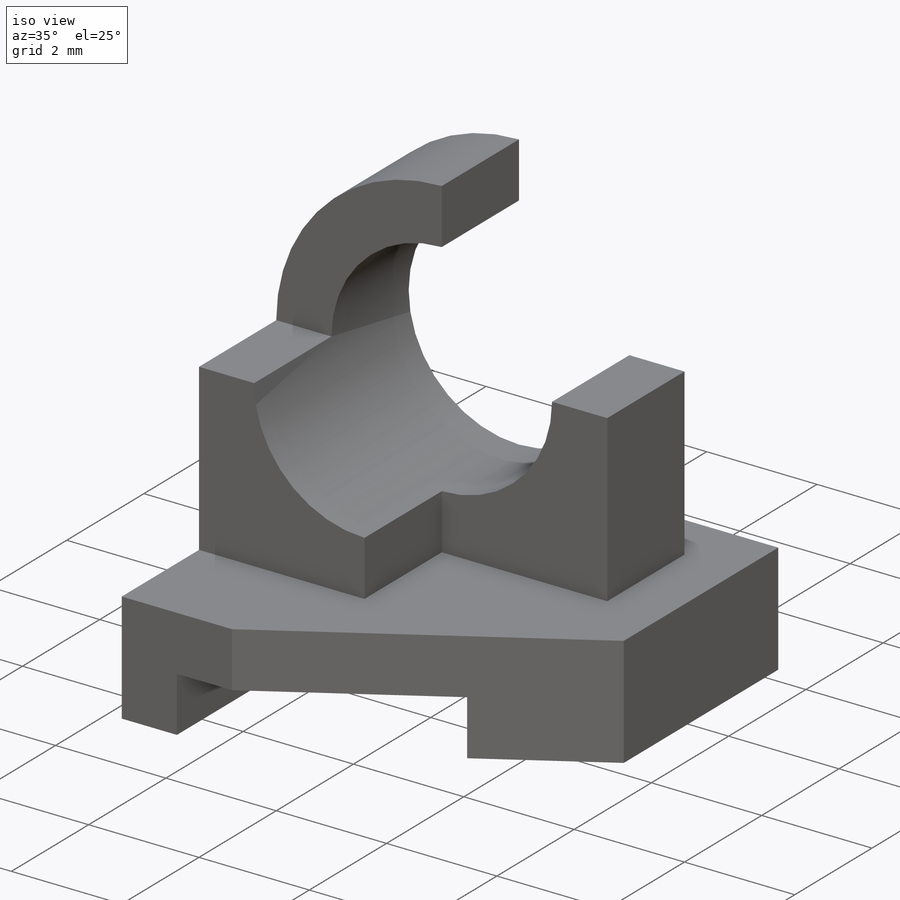
[diagram: iso view]
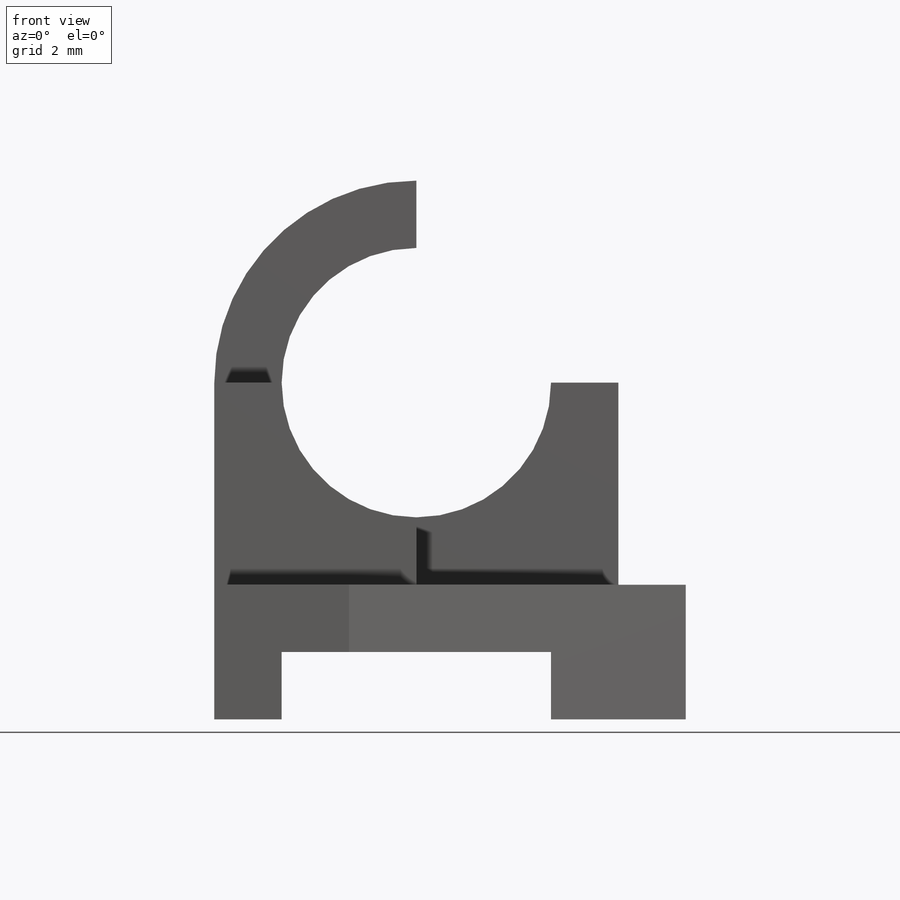
[diagram: front view]
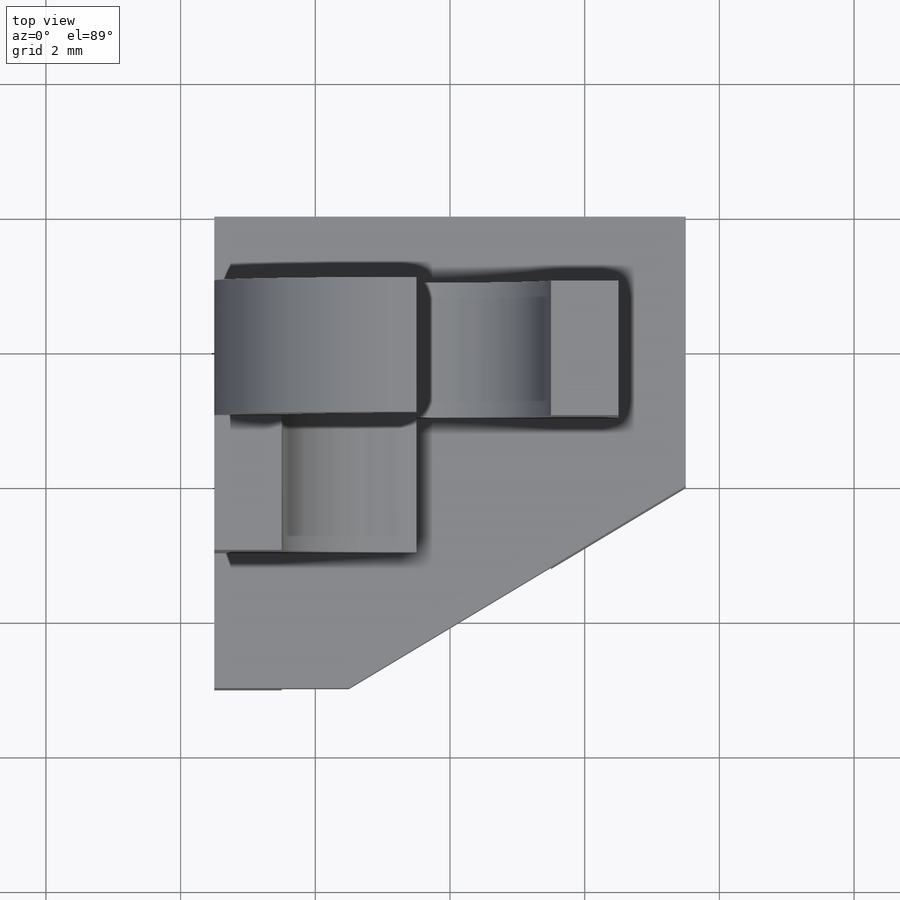
[diagram: top view]
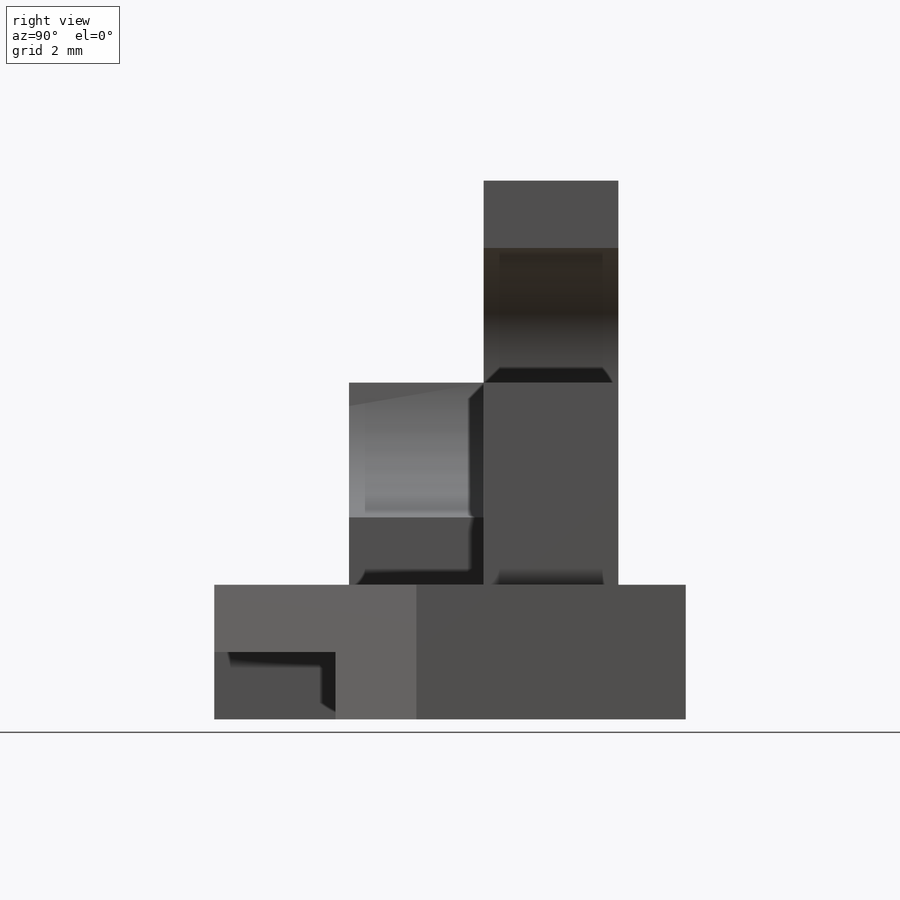
[diagram: right view]
SOLIDWORKS PART (.sldprt)
format: sldprt  version: not decoded by parser v0  size: 381,952 bytes
history: native  units: mm
features: sketch x6, extrude x3, cut_extrude x3, material x1 (+13 scaffold rows collapsed)
feature tree (26):
  scaffold x13  (default folders/planes/origin — collapsed)
  material  "Material <not specified>"
  sketch  "Sketch1"  dims[D1=7.0mm D2=2.0mm]
  extrude  "Boss-Extrude1"  Depth=7mm
  sketch  "Sketch2"  dims[D1=4.0mm D2=2.0mm]
  cut_extrude  "Cut-Extrude1"  [1 undecoded]
  sketch  "Sketch3"  dims[D1=2.0mm]
  cut_extrude  "Cut-Extrude2"  [1 undecoded]
  sketch  "Sketch4"  dims[D1=2.0mm D2=2.0mm D3=3.0mm]
  extrude  "Boss-Extrude2"  Depth=3mm
  sketch  "Sketch6"  dims[c1.D4=2.0mm c1.D1=6.0mm c1.D2=3.0mm c1.D3=1.0mm c2.D4=2.0mm c2.D1=1.0mm]
  extrude  "Boss-Extrude4"  Depth=2mm
  sketch  "Sketch7"
  cut_extrude  "Cut-Extrude4"  Depth=5mm
decode coverage: 9 of 12 modeling features carry decoded parameters
note: 2 parameter values undecoded
note: suppression state not decoded; provenance and decode notes live in map.json
